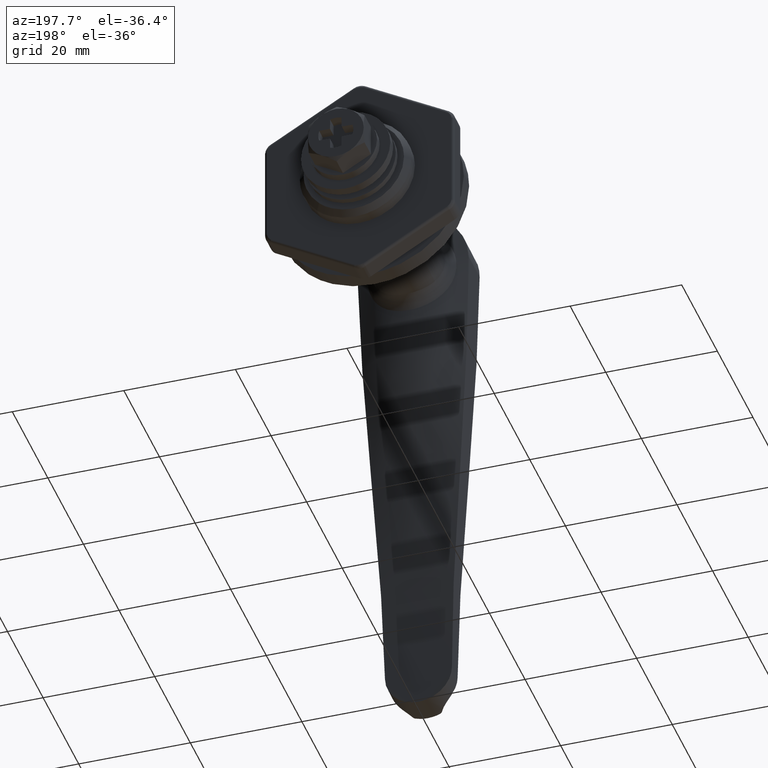
[diagram: clean part render]
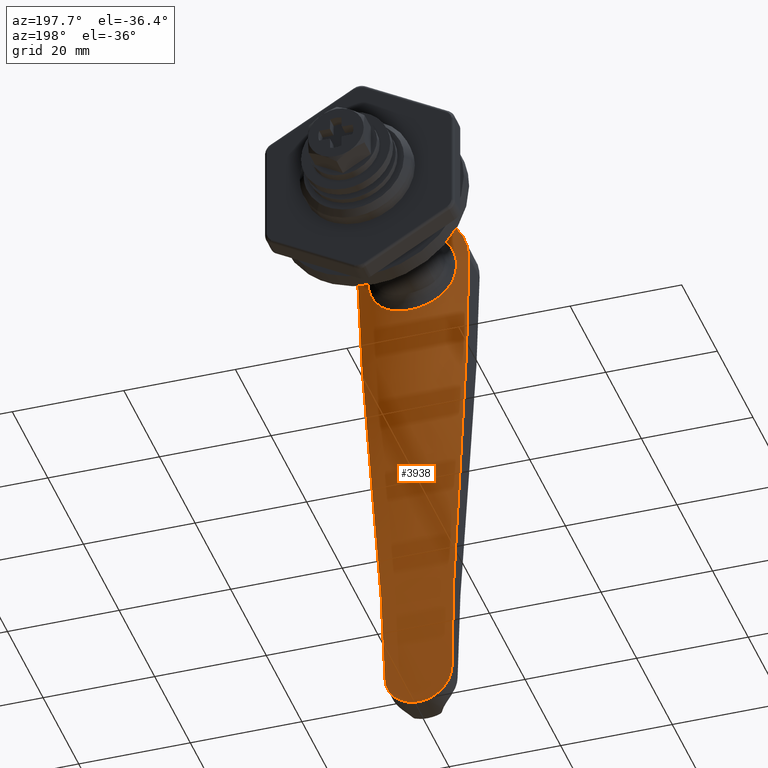
[diagram: same view with one face highlighted and labeled with its STEP entity id]
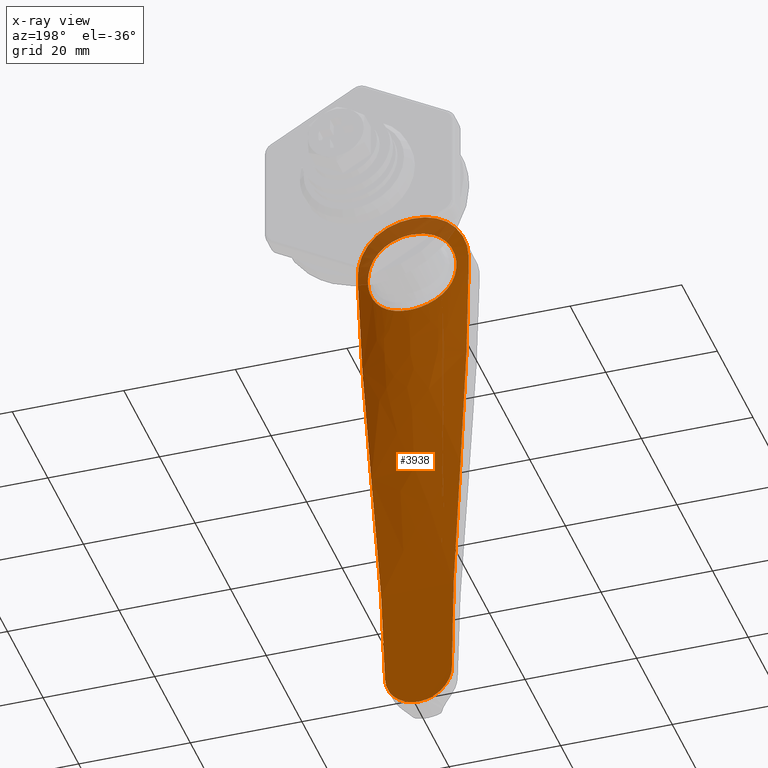
[diagram: x-ray of the same camera — body ghosted, the highlighted face saturated]
A machine part, auxiliary view. The second image highlights one B-rep face of the part: STEP entity #3938.
The next image is the same camera in x-ray: the body ghosted, the highlighted face saturated — about 5% of this face is hidden behind the body in this view.
In plain terms, the highlighted face is a freeform B-spline surface patch.
Its self-contained STEP definition (entity closure, byte-faithful):
#1547=CARTESIAN_POINT('',(-19.001357601555679,-0.107228010979163,8.244339225823069));
#1548=VERTEX_POINT('',#1547);
#1560=CARTESIAN_POINT('',(-17.903535020142229,0.000100562732605,-8.480622176158606));
#1561=VERTEX_POINT('',#1560);
#1562=CARTESIAN_POINT('',(-17.903535020142229,0.000100562732559,-8.480622176158605));
#1563=CARTESIAN_POINT('',(-17.903533771959740,-0.268470255630281,-8.480626079845102));
#1564=CARTESIAN_POINT('',(-17.908516212229561,-0.537181878358486,-8.465483119712154));
#1565=CARTESIAN_POINT('',(-17.920966587298238,-0.873250228066681,-8.427283192017981));
#1566=CARTESIAN_POINT('',(-17.923773023817631,-0.940581087243369,-8.418661101730489));
#1567=CARTESIAN_POINT('',(-17.929980183496379,-1.074680005699520,-8.399552330035121));
#1568=CARTESIAN_POINT('',(-17.940172388044751,-1.274847450030673,-8.368122327499307));
#1569=CARTESIAN_POINT('',(-17.952928025645210,-1.472131532257136,-8.328550920945688));
#1570=CARTESIAN_POINT('',(-17.981652414657820,-1.862980732175174,-8.238878486099228));
#1571=CARTESIAN_POINT('',(-18.005084546535599,-2.118597422357235,-8.165085301641256));
#1572=CARTESIAN_POINT('',(-18.059485669247451,-2.620354409313454,-7.990466910587501));
#1573=CARTESIAN_POINT('',(-18.090456822066479,-2.866493596288445,-7.889638933897142));
#1574=CARTESIAN_POINT('',(-18.133257972376111,-3.168330585035307,-7.746781865837944));
#1575=CARTESIAN_POINT('',(-18.142022539413169,-3.228405476643717,-7.717367306237422));
#1576=CARTESIAN_POINT('',(-18.159944474894150,-3.347969803437070,-7.656845609702264));
#1577=CARTESIAN_POINT('',(-18.169116371887750,-3.407549924323874,-7.625688616682503));
#1578=CARTESIAN_POINT('',(-18.197072410485880,-3.584627675196495,-7.530091988802067));
#1579=CARTESIAN_POINT('',(-18.216285716000801,-3.700420341922248,-7.463568372934971));
#1580=CARTESIAN_POINT('',(-18.275368968625859,-4.041309817315939,-7.255921962124987));
#1581=CARTESIAN_POINT('',(-18.316679402712300,-4.259935860186392,-7.106745994850190));
#1582=CARTESIAN_POINT('',(-18.401727451926170,-4.680972028618286,-6.787903085359334));
#1583=CARTESIAN_POINT('',(-18.445467445121590,-4.883378904141859,-6.618232531297219));
#1584=CARTESIAN_POINT('',(-18.511887916741511,-5.175209085574603,-6.348591607343177));
#1585=CARTESIAN_POINT('',(-18.534163434659291,-5.270518597066996,-6.256183827995788));
#1586=CARTESIAN_POINT('',(-18.578817288207961,-5.457222550359818,-6.066294612560977));
#1587=CARTESIAN_POINT('',(-18.601234044542672,-5.548763244794835,-5.968630540817461));
#1588=CARTESIAN_POINT('',(-18.712093511562731,-5.992491057117702,-5.472328147754692));
#1589=CARTESIAN_POINT('',(-18.797528960736638,-6.306342419387625,-5.047037577970192));
#1590=CARTESIAN_POINT('',(-18.914159062926419,-6.720465062138677,-4.368906543235881));
#1591=CARTESIAN_POINT('',(-18.951127856449769,-6.848982809286814,-4.136111684621265));
#1592=CARTESIAN_POINT('',(-19.002983077364970,-7.027422973765996,-3.776623534798788));
#1593=CARTESIAN_POINT('',(-19.019703076078180,-7.084624659140388,-3.654797496497821));
#1594=CARTESIAN_POINT('',(-19.051579159708339,-7.193324787107718,-3.409627307575682));
#1595=CARTESIAN_POINT('',(-19.066755146768379,-7.244893204118878,-3.286174423101961));
#1596=CARTESIAN_POINT('',(-19.138706358481841,-7.489105218638333,-2.664641396814118));
#1597=CARTESIAN_POINT('',(-19.183594052959311,-7.641272758739031,-2.153866511792936));
#1598=CARTESIAN_POINT('',(-19.222966003340499,-7.777677777778497,-1.498443922918037));
#1599=CARTESIAN_POINT('',(-19.230009952773390,-7.802242616273536,-1.366504755889713));
#1600=CARTESIAN_POINT('',(-19.242441294682362,-7.845837579649390,-1.100887915838684));
#1601=CARTESIAN_POINT('',(-19.247837113530689,-7.864897864651299,-0.966947924076836));
#1602=CARTESIAN_POINT('',(-19.261502139554342,-7.913331478714336,-0.564354621739229));
#1603=CARTESIAN_POINT('',(-19.267216949293239,-7.933878045087564,-0.296213144078205));
#1604=CARTESIAN_POINT('',(-19.272657674119230,-7.951640606911345,0.239565974054831));
#1605=CARTESIAN_POINT('',(-19.272384884226788,-7.948857177693134,0.507203628369853));
#1606=CARTESIAN_POINT('',(-19.266696411926130,-7.919353629415911,1.041963248542530));
#1607=CARTESIAN_POINT('',(-19.261280902877029,-7.892637027825327,1.309085289460026));
#1608=CARTESIAN_POINT('',(-19.250029481113440,-7.833542589494994,1.709359781462910));
#1609=CARTESIAN_POINT('',(-19.245745616820361,-7.810593880257427,1.843054204684237));
#1610=CARTESIAN_POINT('',(-19.236354587245010,-7.758550302217469,2.108035780329001));
#1611=CARTESIAN_POINT('',(-19.231247802364390,-7.729459977096062,2.239420608756129));
#1612=CARTESIAN_POINT('',(-19.214953295301370,-7.632963130392581,2.630262613184777));
#1613=CARTESIAN_POINT('',(-19.202794651284130,-7.556351876784653,2.886414946581416));
#1614=CARTESIAN_POINT('',(-19.177197421848181,-7.377946099766312,3.389744505623486));
#1615=CARTESIAN_POINT('',(-19.163759448561411,-7.276153499466902,3.636922441549347));
#1616=CARTESIAN_POINT('',(-19.143543661359971,-7.103585188253187,4.000650549614969));
#1617=CARTESIAN_POINT('',(-19.136794338970120,-7.042743556433375,4.120718083710338));
#1618=CARTESIAN_POINT('',(-19.126757700568980,-6.946322974308472,4.298997987038042));
#1619=CARTESIAN_POINT('',(-19.123421681335749,-6.913270082880053,4.358209285768870));
#1620=CARTESIAN_POINT('',(-19.116830762659280,-6.845782030613715,4.475376646059035));
#1621=CARTESIAN_POINT('',(-19.113573641085821,-6.811328895789353,4.533372302735891));
#1622=CARTESIAN_POINT('',(-19.084666031904970,-6.494913079133580,5.050080953752153));
#1623=CARTESIAN_POINT('',(-19.062071544611360,-6.168913771120526,5.472310240709373));
#1624=CARTESIAN_POINT('',(-19.035828296963931,-5.613160505933566,6.050498212820331));
#1625=CARTESIAN_POINT('',(-19.028315406410101,-5.416724498789571,6.233983655652306));
#1626=CARTESIAN_POINT('',(-19.018945289384931,-5.104751510302297,6.494897752378661));
#1627=CARTESIAN_POINT('',(-19.016162146678148,-4.998710465098482,6.578767819512839));
#1628=CARTESIAN_POINT('',(-19.011239609158309,-4.783232661999503,6.740038164761065));
#1629=CARTESIAN_POINT('',(-19.009097281060441,-4.673701674946831,6.817517227776757));
#1630=CARTESIAN_POINT('',(-19.003532339670642,-4.339875910339416,7.040737424072831));
#1631=CARTESIAN_POINT('',(-19.000973783406309,-4.110360818235138,7.177283639091494));
#1632=CARTESIAN_POINT('',(-18.997582868094149,-3.637850789571671,7.426623529642908));
#1633=CARTESIAN_POINT('',(-18.996748646377611,-3.394855877389408,7.539417213098608));
#1634=CARTESIAN_POINT('',(-18.996395090719709,-3.082716605656477,7.665608288670358));
#1635=CARTESIAN_POINT('',(-18.996358810458929,-3.019867971217528,7.690104689904250));
#1636=CARTESIAN_POINT('',(-18.996345411907200,-2.893325787359793,7.737607762377543));
#1637=CARTESIAN_POINT('',(-18.996368385209529,-2.829538814944996,7.760645995021881));
#1638=CARTESIAN_POINT('',(-18.996510856532520,-2.637745013171653,7.827225259268036));
#1639=CARTESIAN_POINT('',(-18.996703103167331,-2.509306294895104,7.868246784712333));
#1640=CARTESIAN_POINT('',(-18.997450810317869,-2.122318256994201,7.981549471806416));
#1641=CARTESIAN_POINT('',(-18.998171598270321,-1.862101900907550,8.044097095884775));
#1642=CARTESIAN_POINT('',(-18.999546095289240,-1.337395581886809,8.144244550796577));
#1643=CARTESIAN_POINT('',(-19.000199365191410,-1.072905266629286,8.181842329359192));
#1644=CARTESIAN_POINT('',(-19.001051842729751,-0.574883329135617,8.228896128382354));
#1645=CARTESIAN_POINT('',(-19.001299039513729,-0.341881931208443,8.241414826837783));
#1646=CARTESIAN_POINT('',(-19.001357601555679,-0.107228010979163,8.244339225823069));
#1647=B_SPLINE_CURVE_WITH_KNOTS('',3,(#1562,#1563,#1564,#1565,#1566,#1567,#1568,#1569,#1570,#1571,#1572,#1573,#1574,#1575,#1576,#1577,#1578,#1579,#1580,#1581,#1582,#1583,#1584,#1585,#1586,#1587,#1588,#1589,#1590,#1591,#1592,#1593,#1594,#1595,#1596,#1597,#1598,#1599,#1600,#1601,#1602,#1603,#1604,#1605,#1606,#1607,#1608,#1609,#1610,#1611,#1612,#1613,#1614,#1615,#1616,#1617,#1618,#1619,#1620,#1621,#1622,#1623,#1624,#1625,#1626,#1627,#1628,#1629,#1630,#1631,#1632,#1633,#1634,#1635,#1636,#1637,#1638,#1639,#1640,#1641,#1642,#1643,#1644,#1645,#1646),.UNSPECIFIED.,.F.,.U.,(4,2,2,1,2,2,2,2,2,2,2,2,2,2,2,2,2,2,2,2,2,2,2,2,2,2,2,2,2,2,2,2,2,2,2,2,2,2,2,2,2,2,4),(0.500000000000001,0.515625000000001,0.519531250000001,0.523437500000001,0.531250000000001,0.546875000000001,0.562500000000001,0.566406250000001,0.570312500000001,0.578125000000001,0.593750000000001,0.609375000000001,0.617187500000001,0.625000000000001,0.656250000000001,0.671875000000001,0.679687500000001,0.687500000000001,0.718750000000001,0.726562500000001,0.734375000000001,0.750000000000001,0.765625000000001,0.781250000000001,0.789062500000001,0.796875000000001,0.812500000000001,0.828125000000001,0.835937500000001,0.839843750000001,0.843750000000001,0.875000000000001,0.890625000000001,0.898437500000001,0.906250000000001,0.921875000000000,0.937500000000000,0.941406250000000,0.945312500000000,0.953125000000000,0.968750000000000,0.984375000000000,0.997936514156844),.UNSPECIFIED.);
#1648=EDGE_CURVE('',#1561,#1548,#1647,.T.);
#1650=CARTESIAN_POINT('',(-19.068282113950410,6.227806862044089,5.369896693293233));
#1651=VERTEX_POINT('',#1650);
#1652=CARTESIAN_POINT('',(-19.068282113950410,6.227806862044089,5.369896693293233));
#1653=CARTESIAN_POINT('',(-19.080980775893359,6.427036051257670,5.122360979012221));
#1654=CARTESIAN_POINT('',(-19.095223447820889,6.610773373964645,4.861292010283801));
#1655=CARTESIAN_POINT('',(-19.113829179422009,6.814080900616744,4.528788459815425));
#1656=CARTESIAN_POINT('',(-19.117105398307579,6.848668862192797,4.470462094558425));
#1657=CARTESIAN_POINT('',(-19.123694064060722,6.916011480538908,4.353344994353220));
#1658=CARTESIAN_POINT('',(-19.133646707368360,7.014448443223040,4.176695414983241));
#1659=CARTESIAN_POINT('',(-19.143736585286121,7.105300165926714,3.997175723374084));
#1660=CARTESIAN_POINT('',(-19.163894413481518,7.277206430326536,3.634419355838861));
#1661=CARTESIAN_POINT('',(-19.177307874801699,7.378769089551774,3.387634117986985));
#1662=CARTESIAN_POINT('',(-19.202884073181011,7.556942234938492,2.884537475815836));
#1663=CARTESIAN_POINT('',(-19.215046274342029,7.633551624093230,2.628225628745045));
#1664=CARTESIAN_POINT('',(-19.231355379531809,7.730090509980546,2.236692195917787));
#1665=CARTESIAN_POINT('',(-19.236468446072259,7.759202451725784,2.105001439905572));
#1666=CARTESIAN_POINT('',(-19.245871243345409,7.811283929278599,1.839249239583157));
#1667=CARTESIAN_POINT('',(-19.250122844988532,7.834046251373824,1.706246549176100));
#1668=CARTESIAN_POINT('',(-19.261325111310239,7.892863718418711,1.306947527711631));
#1669=CARTESIAN_POINT('',(-19.266720707267140,7.919482232290541,1.040326916669834));
#1670=CARTESIAN_POINT('',(-19.272385256368860,7.948869775391202,0.506283460038410));
#1671=CARTESIAN_POINT('',(-19.272654013774240,7.951635761502097,0.238860513774644));
#1672=CARTESIAN_POINT('',(-19.267205406256569,7.933841183450872,-0.296773602878840));
#1673=CARTESIAN_POINT('',(-19.261486727493430,7.913280446643648,-0.564984783778431));
#1674=CARTESIAN_POINT('',(-19.243237936170701,7.848601183714503,-1.102206004744640));
#1675=CARTESIAN_POINT('',(-19.230815932550382,7.804877067187138,-1.367813134221373));
#1676=CARTESIAN_POINT('',(-19.183562859806660,7.641169475302292,-2.154242203551778));
#1677=CARTESIAN_POINT('',(-19.138638564111449,7.488880777125524,-2.665525289512008));
#1678=CARTESIAN_POINT('',(-19.066500739144949,7.244031977533418,-3.288287684539276));
#1679=CARTESIAN_POINT('',(-19.051279596102589,7.192308827576602,-3.412022803525309));
#1680=CARTESIAN_POINT('',(-19.019300270097549,7.083251043623728,-3.657789707576298));
#1681=CARTESIAN_POINT('',(-19.002648523646641,7.026278394221994,-3.779006254088048));
#1682=CARTESIAN_POINT('',(-18.950873496878820,6.848102151507272,-4.137730616841682));
#1683=CARTESIAN_POINT('',(-18.913927822314861,6.719658628588840,-4.370324356732314));
#1684=CARTESIAN_POINT('',(-18.836128226747270,6.443388391797360,-4.822525386177055));
#1685=CARTESIAN_POINT('',(-18.795273846649941,6.295562845859812,-5.042133336724987));
#1686=CARTESIAN_POINT('',(-18.731839735007849,6.058786513233447,-5.361623884375960));
#1687=CARTESIAN_POINT('',(-18.710337007276308,5.977349932988626,-5.466464251913200));
#1688=CARTESIAN_POINT('',(-18.666755426539900,5.809308275833063,-5.672763689918319));
#1689=CARTESIAN_POINT('',(-18.644624487709649,5.722493191467095,-5.774452998243625));
#1690=CARTESIAN_POINT('',(-18.533585113103740,5.277776193330917,-6.271163477595421));
#1691=CARTESIAN_POINT('',(-18.443965013168469,4.890197433725672,-6.629603844554417));
#1692=CARTESIAN_POINT('',(-18.316404420845871,4.258514127750243,-7.107750671416707));
#1693=CARTESIAN_POINT('',(-18.275030077619508,4.039508439017823,-7.257142723560106));
#1694=CARTESIAN_POINT('',(-18.215771536642269,3.697377842054078,-7.465358848309863));
#1695=CARTESIAN_POINT('',(-18.196433710095562,3.580703027406691,-7.532291783327941));
#1696=CARTESIAN_POINT('',(-18.159287193692471,3.345168775697409,-7.659281920369983));
#1697=CARTESIAN_POINT('',(-18.141447705626081,3.226163977845459,-7.719453504756598));
#1698=CARTESIAN_POINT('',(-18.090328593657869,2.865434196710718,-7.890051764213489));
#1699=CARTESIAN_POINT('',(-18.059447817382399,2.620002875056966,-7.990587736283571));
#1700=CARTESIAN_POINT('',(-18.005130237153072,2.119023917998979,-8.164938385491189));
#1701=CARTESIAN_POINT('',(-17.981691135170291,1.863477882306958,-8.238756944231408));
#1702=CARTESIAN_POINT('',(-17.952929716191900,1.472171175251353,-8.328545558685992));
#1703=CARTESIAN_POINT('',(-17.944409328580679,1.340401782092986,-8.354978086749016));
#1704=CARTESIAN_POINT('',(-17.933338601507369,1.140670588310559,-8.389196068590984));
#1705=CARTESIAN_POINT('',(-17.929928433570289,1.073632470801549,-8.399711654622683));
#1706=CARTESIAN_POINT('',(-17.923727317141751,0.939524282456268,-8.418801477738873));
#1707=CARTESIAN_POINT('',(-17.920935332072720,0.872461222252841,-8.427379027784513));
#1708=CARTESIAN_POINT('',(-17.908521180228210,0.537101398369599,-8.465467503597658));
#1709=CARTESIAN_POINT('',(-17.903536256704889,0.268671382634969,-8.480618271829126));
#1710=CARTESIAN_POINT('',(-17.903535020142229,0.000100562732605,-8.480622176158606));
#1711=B_SPLINE_CURVE_WITH_KNOTS('',3,(#1652,#1653,#1654,#1655,#1656,#1657,#1658,#1659,#1660,#1661,#1662,#1663,#1664,#1665,#1666,#1667,#1668,#1669,#1670,#1671,#1672,#1673,#1674,#1675,#1676,#1677,#1678,#1679,#1680,#1681,#1682,#1683,#1684,#1685,#1686,#1687,#1688,#1689,#1690,#1691,#1692,#1693,#1694,#1695,#1696,#1697,#1698,#1699,#1700,#1701,#1702,#1703,#1704,#1705,#1706,#1707,#1708,#1709,#1710),.UNSPECIFIED.,.F.,.U.,(4,2,2,1,2,2,2,2,2,2,2,2,2,2,2,2,2,2,2,2,2,2,2,2,2,2,2,2,2,4),(0.137643448872302,0.156249999999999,0.160156249999999,0.164062499999999,0.171874999999999,0.187499999999999,0.203124999999999,0.210937499999999,0.218749999999999,0.234374999999999,0.249999999999999,0.265624999999999,0.281249999999999,0.312499999999999,0.320312499999999,0.328125000000000,0.343750000000000,0.359375000000000,0.367187500000000,0.375000000000000,0.406250000000000,0.421875000000000,0.429687500000000,0.437500000000000,0.453125000000001,0.468750000000001,0.476562500000001,0.480468750000001,0.484375000000001,0.500000000000001),.UNSPECIFIED.);
#1712=EDGE_CURVE('',#1651,#1561,#1711,.T.);
#1838=CARTESIAN_POINT('',(-19.001370817716150,6.776264E-016,8.245008103080039));
#1839=VERTEX_POINT('',#1838);
#1840=CARTESIAN_POINT('',(-19.001370817716150,6.776264E-016,8.245008103080039));
#1841=CARTESIAN_POINT('',(-19.001370759928658,0.270939188124044,8.245008106277727));
#1842=CARTESIAN_POINT('',(-19.001111933367930,0.539848213783833,8.232221844354337));
#1843=CARTESIAN_POINT('',(-19.000197510325439,1.073713097835259,8.181750449586360));
#1844=CARTESIAN_POINT('',(-18.999542614838528,1.338668633912024,8.144063278194512));
#1845=CARTESIAN_POINT('',(-18.998164510752790,1.864590619439029,8.043559997290922));
#1846=CARTESIAN_POINT('',(-18.997441668235041,2.125557487093562,7.980746518083983));
#1847=CARTESIAN_POINT('',(-18.996694919734178,2.513882240423838,7.866832643144313));
#1848=CARTESIAN_POINT('',(-18.996503654256319,2.643155741074718,7.825441319437822));
#1849=CARTESIAN_POINT('',(-18.996319234225879,2.898420115654758,7.736636437840273));
#1850=CARTESIAN_POINT('',(-18.996325647000610,3.024451696697625,7.689235285728863));
#1851=CARTESIAN_POINT('',(-18.996756778376412,3.397773227481405,7.538091204147809));
#1852=CARTESIAN_POINT('',(-18.997593730102309,3.640301924518719,7.425430073146223));
#1853=CARTESIAN_POINT('',(-19.000994147624009,4.112509495943869,7.176049062836230));
#1854=CARTESIAN_POINT('',(-19.003559471796230,4.342188871582291,7.039330153329687));
#1855=CARTESIAN_POINT('',(-19.009150892132268,4.676669017364199,6.815462319229020));
#1856=CARTESIAN_POINT('',(-19.011304847169349,4.786486164921375,6.737702346572339));
#1857=CARTESIAN_POINT('',(-19.016259349572469,5.002661275606022,6.575708719432722));
#1858=CARTESIAN_POINT('',(-19.019068376861540,5.109220614905208,6.491278825319884));
#1859=CARTESIAN_POINT('',(-19.028420485900678,5.419591671138319,6.231342002564094));
#1860=CARTESIAN_POINT('',(-19.035919743977679,5.615374659128980,6.048334450520024));
#1861=CARTESIAN_POINT('',(-19.051737272099960,5.949894765769680,5.700056763785525));
#1862=CARTESIAN_POINT('',(-19.059653225916829,6.092427436391702,5.538101164328117));
#1863=CARTESIAN_POINT('',(-19.068282113950410,6.227806862044089,5.369896693293233));
#1864=B_SPLINE_CURVE_WITH_KNOTS('',3,(#1840,#1841,#1842,#1843,#1844,#1845,#1846,#1847,#1848,#1849,#1850,#1851,#1852,#1853,#1854,#1855,#1856,#1857,#1858,#1859,#1860,#1861,#1862,#1863),.UNSPECIFIED.,.F.,.U.,(4,2,2,2,2,2,2,2,2,2,2,4),(0.0,0.015625000000000,0.031250000000000,0.046875000000000,0.054687500000000,0.062500000000000,0.078125000000000,0.093749999999999,0.101562499999999,0.109374999999999,0.124999999999999,0.137643448872302),.UNSPECIFIED.);
#1865=EDGE_CURVE('',#1839,#1651,#1864,.T.);
#1867=CARTESIAN_POINT('',(-19.001357601555679,-0.107228010979163,8.244339225823069));
#1868=CARTESIAN_POINT('',(-19.001370817716150,6.776264E-016,8.245008103080039));
#1869=QUASI_UNIFORM_CURVE('',1,(#1867,#1868),.UNSPECIFIED.,.F.,.U.);
#1870=EDGE_CURVE('',#1548,#1839,#1869,.T.);
#3048=CARTESIAN_POINT('',(-19.500000000000000,0.002845863706762,12.000000000000460));
#3049=VERTEX_POINT('',#3048);
#3055=CARTESIAN_POINT('',(-19.852089478674500,9.942125116040240,1.940300609303185));
#3056=VERTEX_POINT('',#3055);
#3057=CARTESIAN_POINT('',(-19.852089478674500,9.942125116040240,1.940300609303185));
#3058=CARTESIAN_POINT('',(-19.840504342791021,9.946111417464527,2.271304491688516));
#3059=CARTESIAN_POINT('',(-19.823805584489911,9.933572393587131,2.599342688325600));
#3060=CARTESIAN_POINT('',(-19.783342092462512,9.876766393733028,3.249921557686267));
#3061=CARTESIAN_POINT('',(-19.759579352706378,9.832495406652663,3.572461741534132));
#3062=CARTESIAN_POINT('',(-19.708072306676328,9.712486938934330,4.212305937127796));
#3063=CARTESIAN_POINT('',(-19.680329617497271,9.636750409882588,4.529610214075296));
#3064=CARTESIAN_POINT('',(-19.645005780737819,9.521952664404306,4.923027057208777));
#3065=CARTESIAN_POINT('',(-19.637908345717811,9.497984222144915,5.001549323002757));
#3066=CARTESIAN_POINT('',(-19.623692502783360,9.448007560266595,5.158271355349747));
#3067=CARTESIAN_POINT('',(-19.616564352728879,9.421961009279285,5.236578064867534));
#3068=CARTESIAN_POINT('',(-19.595310062877921,9.341095519939309,5.469956989299011));
#3069=CARTESIAN_POINT('',(-19.581305977201659,9.283532395503070,5.623596811808681));
#3070=CARTESIAN_POINT('',(-19.540256285546459,9.100083655417750,6.078821159923560));
#3071=CARTESIAN_POINT('',(-19.514192621362440,8.963465173976438,6.374726296898198));
#3072=CARTESIAN_POINT('',(-19.466666605513328,8.661969855623880,6.951741319134568));
#3073=CARTESIAN_POINT('',(-19.445202684726809,8.497092281303120,7.232850686004259));
#3074=CARTESIAN_POINT('',(-19.417500015794761,8.228232005674171,7.643312137178990));
#3075=CARTESIAN_POINT('',(-19.409010108355229,8.135014768153821,7.778261681913909));
#3076=CARTESIAN_POINT('',(-19.397481947569371,7.989688442701850,7.977830477183364));
#3077=CARTESIAN_POINT('',(-19.393840067061319,7.940329149658172,8.043877231119620));
#3078=CARTESIAN_POINT('',(-19.386969700653840,7.839753236435041,8.175006987988409));
#3079=CARTESIAN_POINT('',(-19.383745026985959,7.788579503618374,8.240028598794012));
#3080=CARTESIAN_POINT('',(-19.368754442423270,7.529536431854784,8.560873617313092));
#3081=CARTESIAN_POINT('',(-19.360331285552000,7.311086049168969,8.805365298575193));
#3082=CARTESIAN_POINT('',(-19.350155148207989,6.852401166095016,9.270680951141328));
#3083=CARTESIAN_POINT('',(-19.348398873684339,6.612165071861645,9.491503151822354));
#3084=CARTESIAN_POINT('',(-19.350611756917878,6.109906759907513,9.909467924702076));
#3085=CARTESIAN_POINT('',(-19.354578827749279,5.847886102096211,10.106612175110550));
#3086=CARTESIAN_POINT('',(-19.363824276686760,5.438034206070107,10.384034082360600));
#3087=CARTESIAN_POINT('',(-19.367459570092940,5.298432118641217,10.473531410949720));
#3088=CARTESIAN_POINT('',(-19.375523381088829,5.016690126381170,10.644410888123620));
#3089=CARTESIAN_POINT('',(-19.379958638460622,4.874186988197903,10.726052939967190));
#3090=CARTESIAN_POINT('',(-19.394109149772831,4.441854836964431,10.959783759912650));
#3091=CARTESIAN_POINT('',(-19.404665879399928,4.147214867188453,11.100704628827749));
#3092=CARTESIAN_POINT('',(-19.426137899060961,3.545193569808584,11.353110746773790));
#3093=CARTESIAN_POINT('',(-19.437051442214891,3.237812387908654,11.464596464280520));
#3094=CARTESIAN_POINT('',(-19.452366081840420,2.766970631128200,11.609354692192561));
#3095=CARTESIAN_POINT('',(-19.457296147996111,2.608392077395327,11.653855434129211));
#3096=CARTESIAN_POINT('',(-19.466602509657982,2.287898780293368,11.735198516363189));
#3097=CARTESIAN_POINT('',(-19.470957160453079,2.126673060303721,11.771853755199739));
#3098=CARTESIAN_POINT('',(-19.482827579512129,1.642125316630144,11.869431388656819));
#3099=CARTESIAN_POINT('',(-19.489159979898481,1.317082466054211,11.918215172170701));
#3100=CARTESIAN_POINT('',(-19.497746730643161,0.662991542638572,11.983498975177760));
#3101=CARTESIAN_POINT('',(-19.500000000000011,0.333943576080169,12.000000000000471));
#3102=CARTESIAN_POINT('',(-19.500000000000000,0.002845863706762,12.000000000000460));
#3103=B_SPLINE_CURVE_WITH_KNOTS('',3,(#3057,#3058,#3059,#3060,#3061,#3062,#3063,#3064,#3065,#3066,#3067,#3068,#3069,#3070,#3071,#3072,#3073,#3074,#3075,#3076,#3077,#3078,#3079,#3080,#3081,#3082,#3083,#3084,#3085,#3086,#3087,#3088,#3089,#3090,#3091,#3092,#3093,#3094,#3095,#3096,#3097,#3098,#3099,#3100,#3101,#3102),.UNSPECIFIED.,.F.,.U.,(4,2,2,2,2,2,2,2,2,2,2,2,2,2,2,2,2,2,2,2,2,2,4),(0.0,0.062500000000000,0.125000000000000,0.187499999999999,0.203124999999999,0.218749999999999,0.249999999999999,0.312500000000000,0.375000000000000,0.406250000000000,0.421875000000000,0.437500000000000,0.500000000000000,0.562500000000000,0.625000000000000,0.656250000000000,0.687500000000000,0.750000000000000,0.812500000000000,0.843750000000000,0.875000000000000,0.937500000000000,1.0),.UNSPECIFIED.);
#3104=EDGE_CURVE('',#3056,#3049,#3103,.T.);
#3169=CARTESIAN_POINT('',(-19.852089478674500,-9.942125116040250,1.940300609303185));
#3170=VERTEX_POINT('',#3169);
#3176=CARTESIAN_POINT('',(-19.500000000000000,-0.002845863706769,12.000000000000460));
#3177=VERTEX_POINT('',#3176);
#3178=CARTESIAN_POINT('',(-19.500000000000000,-0.002845863706769,12.000000000000460));
#3179=CARTESIAN_POINT('',(-19.500000000000000,-0.333960810856462,12.000000000000460));
#3180=CARTESIAN_POINT('',(-19.497747238442649,-0.662226170924390,11.983498974771910));
#3181=CARTESIAN_POINT('',(-19.489219536887390,-1.313267341629717,11.918671809226820));
#3182=CARTESIAN_POINT('',(-19.482946290593080,-1.636042637917376,11.870342446257290));
#3183=CARTESIAN_POINT('',(-19.467324594315379,-2.276155984317146,11.742056171684800));
#3184=CARTESIAN_POINT('',(-19.457976910435779,-2.593494295132160,11.662100704610779));
#3185=CARTESIAN_POINT('',(-19.445225859481390,-2.986707201495857,11.541926694725680));
#3186=CARTESIAN_POINT('',(-19.442623336178350,-3.065176394286597,11.516878001067630));
#3187=CARTESIAN_POINT('',(-19.437339055056711,-3.221764841152401,11.464731278576680));
#3188=CARTESIAN_POINT('',(-19.434653545409208,-3.299990911702856,11.437593309297860));
#3189=CARTESIAN_POINT('',(-19.426556590406950,-3.533053880629529,11.353466432159820));
#3190=CARTESIAN_POINT('',(-19.421100685668350,-3.686411275025699,11.293735436392140));
#3191=CARTESIAN_POINT('',(-19.404904195931032,-4.140558161331813,11.103817442709330));
#3192=CARTESIAN_POINT('',(-19.394335152802888,-4.435436898624686,10.962931721773961));
#3193=CARTESIAN_POINT('',(-19.375506468670348,-5.009737043928440,10.653084267876221));
#3194=CARTESIAN_POINT('',(-19.367248819104660,-5.289158280919880,10.484122121197730));
#3195=CARTESIAN_POINT('',(-19.357961314152089,-5.696582664703230,10.209343185944061));
#3196=CARTESIAN_POINT('',(-19.355381534292359,-5.830435942136852,10.114187757946150));
#3197=CARTESIAN_POINT('',(-19.351473118744110,-6.094168271088940,9.916623822723732));
#3198=CARTESIAN_POINT('',(-19.350144801379919,-6.224400964028424,9.813907928571634));
#3199=CARTESIAN_POINT('',(-19.348357975198962,-6.605364352370973,9.497694113853006));
#3200=CARTESIAN_POINT('',(-19.350089141143901,-6.846914510126576,9.275887339029678));
#3201=CARTESIAN_POINT('',(-19.360161963301149,-7.305907627320121,8.810969900934502));
#3202=CARTESIAN_POINT('',(-19.368505519536221,-7.523348831644979,8.567857736462086));
#3203=CARTESIAN_POINT('',(-19.392064633766921,-7.934159369712647,8.060370261762612));
#3204=CARTESIAN_POINT('',(-19.407283427839779,-8.127530422619451,7.795996600973576));
#3205=CARTESIAN_POINT('',(-19.435025564498300,-8.399036586336266,7.383036764506469));
#3206=CARTESIAN_POINT('',(-19.445104649043252,-8.486525195565127,7.242454763243224));
#3207=CARTESIAN_POINT('',(-19.466526524959608,-8.653340871216537,6.958937487242660));
#3208=CARTESIAN_POINT('',(-19.477891998327468,-8.732923076057828,6.815636190746891));
#3209=CARTESIAN_POINT('',(-19.513633041358990,-8.960412303903683,6.381168628838268));
#3210=CARTESIAN_POINT('',(-19.539669383994589,-9.097089987471042,6.085451803254096));
#3211=CARTESIAN_POINT('',(-19.594073529977390,-9.340950607092122,5.481891027561528));
#3212=CARTESIAN_POINT('',(-19.622442221658769,-9.448134520772701,5.174047562496625));
#3213=CARTESIAN_POINT('',(-19.664783911429222,-9.586455975963299,4.702879059936985));
#3214=CARTESIAN_POINT('',(-19.678858379229169,-9.628813538024581,4.544252309251664));
#3215=CARTESIAN_POINT('',(-19.706549176712990,-9.705881106084846,4.223762992613192));
#3216=CARTESIAN_POINT('',(-19.720101625542309,-9.740408659751235,4.062612445707300));
#3217=CARTESIAN_POINT('',(-19.759147940521821,-9.831693624561993,3.578319779351705));
#3218=CARTESIAN_POINT('',(-19.783100257121429,-9.876378482179588,3.253546477038984));
#3219=CARTESIAN_POINT('',(-19.823781095260308,-9.933586100713484,2.599998061102212));
#3220=CARTESIAN_POINT('',(-19.840507196274729,-9.946110435616216,2.271222963582659));
#3221=CARTESIAN_POINT('',(-19.852089478674500,-9.942125116040250,1.940300609303185));
#3222=B_SPLINE_CURVE_WITH_KNOTS('',3,(#3178,#3179,#3180,#3181,#3182,#3183,#3184,#3185,#3186,#3187,#3188,#3189,#3190,#3191,#3192,#3193,#3194,#3195,#3196,#3197,#3198,#3199,#3200,#3201,#3202,#3203,#3204,#3205,#3206,#3207,#3208,#3209,#3210,#3211,#3212,#3213,#3214,#3215,#3216,#3217,#3218,#3219,#3220,#3221),.UNSPECIFIED.,.F.,.U.,(4,2,2,2,2,2,2,2,2,2,2,2,2,2,2,2,2,2,2,2,2,4),(0.0,0.062500000000000,0.125000000000000,0.187499999999999,0.203124999999999,0.218749999999999,0.249999999999999,0.312499999999999,0.374999999999999,0.406249999999999,0.437499999999999,0.499999999999999,0.562499999999999,0.624999999999999,0.656249999999999,0.687499999999999,0.749999999999999,0.812499999999999,0.843749999999999,0.874999999999999,0.937500000000000,1.0),.UNSPECIFIED.);
#3223=EDGE_CURVE('',#3177,#3170,#3222,.T.);
#3271=CARTESIAN_POINT('',(-22.791338238143950,-6.000646811528800,-82.038235375539003));
#3272=VERTEX_POINT('',#3271);
#3278=CARTESIAN_POINT('',(-21.326636525254148,-8.0,-40.189615007261047));
#3279=VERTEX_POINT('',#3278);
#3280=CARTESIAN_POINT('',(-21.326636525254148,-8.0,-40.189615007261047));
#3281=CARTESIAN_POINT('',(-21.814870247890038,-7.080496844258385,-54.139149939713498));
#3282=CARTESIAN_POINT('',(-22.303103816034870,-6.089543028374953,-68.088680458128650));
#3283=CARTESIAN_POINT('',(-22.791338238143979,-6.000646811528791,-82.038235375539003));
#3284=B_SPLINE_CURVE_WITH_KNOTS('',3,(#3280,#3281,#3282,#3283),.UNSPECIFIED.,.F.,.U.,(4,4),(0.522937444509096,0.941423706421421),.UNSPECIFIED.);
#3285=EDGE_CURVE('',#3279,#3272,#3284,.T.);
#3287=CARTESIAN_POINT('',(-19.920000000000002,-9.915000000000001,-2.074672E-013));
#3288=VERTEX_POINT('',#3287);
#3289=CARTESIAN_POINT('',(-19.920000000000002,-9.915000000000001,-2.074672E-013));
#3290=CARTESIAN_POINT('',(-20.388879049120931,-9.700204649526532,-13.396544260596830));
#3291=CARTESIAN_POINT('',(-20.857757858429981,-8.883051280188221,-26.793081669430549));
#3292=CARTESIAN_POINT('',(-21.326636525254148,-8.0,-40.189615007261047));
#3293=B_SPLINE_CURVE_WITH_KNOTS('',3,(#3289,#3290,#3291,#3292),.UNSPECIFIED.,.F.,.U.,(4,4),(0.119999951288358,0.521896156880881),.UNSPECIFIED.);
#3294=EDGE_CURVE('',#3288,#3279,#3293,.T.);
#3296=CARTESIAN_POINT('',(-19.852089478674500,-9.942125116040250,1.940300609303185));
#3297=CARTESIAN_POINT('',(-19.874726319615089,-9.934336060116324,1.293533725286308));
#3298=CARTESIAN_POINT('',(-19.897363160087089,-9.925370026069292,0.646766854657673));
#3299=CARTESIAN_POINT('',(-19.920000000000002,-9.915000000000001,-2.074672E-013));
#3300=B_SPLINE_CURVE_WITH_KNOTS('',3,(#3296,#3297,#3298,#3299),.UNSPECIFIED.,.F.,.U.,(4,4),(0.0,0.019402999738878),.UNSPECIFIED.);
#3301=EDGE_CURVE('',#3170,#3288,#3300,.T.);
#3332=CARTESIAN_POINT('',(-21.326636525254148,8.0,-40.189615007261047));
#3333=VERTEX_POINT('',#3332);
#3334=CARTESIAN_POINT('',(-22.791338238143950,6.000646811528791,-82.038235375539003));
#3335=VERTEX_POINT('',#3334);
#3336=CARTESIAN_POINT('',(-21.326636525254148,8.0,-40.189615007261047));
#3337=CARTESIAN_POINT('',(-21.814870247890038,7.080496844258388,-54.139149939713477));
#3338=CARTESIAN_POINT('',(-22.303103816034870,6.089543028374934,-68.088680458128636));
#3339=CARTESIAN_POINT('',(-22.791338238143979,6.000646811528778,-82.038235375539003));
#3340=B_SPLINE_CURVE_WITH_KNOTS('',3,(#3336,#3337,#3338,#3339),.UNSPECIFIED.,.F.,.U.,(4,4),(0.521896156880881,0.940382418793206),.UNSPECIFIED.);
#3341=EDGE_CURVE('',#3333,#3335,#3340,.T.);
#3360=CARTESIAN_POINT('',(-19.920000000000002,9.915000000000001,-2.076464E-013));
#3361=VERTEX_POINT('',#3360);
#3362=CARTESIAN_POINT('',(-19.852089478674500,9.942125116040240,1.940300609303185));
#3363=CARTESIAN_POINT('',(-19.874726319615110,9.934336060116317,1.293533725286309));
#3364=CARTESIAN_POINT('',(-19.897363160087110,9.925370026069285,0.646766854657675));
#3365=CARTESIAN_POINT('',(-19.920000000000002,9.915000000000001,-2.076464E-013));
#3366=B_SPLINE_CURVE_WITH_KNOTS('',3,(#3362,#3363,#3364,#3365),.UNSPECIFIED.,.F.,.U.,(4,4),(0.100596951549481,0.119999951288358),.UNSPECIFIED.);
#3367=EDGE_CURVE('',#3056,#3361,#3366,.T.);
#3369=CARTESIAN_POINT('',(-19.920000000000002,9.915000000000001,-2.076464E-013));
#3370=CARTESIAN_POINT('',(-20.388879049120980,9.700204649526516,-13.396544260596830));
#3371=CARTESIAN_POINT('',(-20.857757858429999,8.883051280188221,-26.793081669430538));
#3372=CARTESIAN_POINT('',(-21.326636525254148,8.0,-40.189615007261047));
#3373=B_SPLINE_CURVE_WITH_KNOTS('',3,(#3369,#3370,#3371,#3372),.UNSPECIFIED.,.F.,.U.,(4,4),(0.119999951288358,0.521896156880881),.UNSPECIFIED.);
#3374=EDGE_CURVE('',#3361,#3333,#3373,.T.);
#3386=CARTESIAN_POINT('',(-19.500000000000000,-0.002845863706769,12.000000000000460));
#3387=CARTESIAN_POINT('',(-19.500000000000000,0.002845863706762,12.000000000000460));
#3388=QUASI_UNIFORM_CURVE('',1,(#3386,#3387),.UNSPECIFIED.,.F.,.U.);
#3389=EDGE_CURVE('',#3177,#3049,#3388,.T.);
#3662=CARTESIAN_POINT('',(-23.0,-2.602031E-015,-88.000000000000995));
#3663=VERTEX_POINT('',#3662);
#3664=CARTESIAN_POINT('',(-23.0,-2.602031E-015,-88.000000000000995));
#3665=CARTESIAN_POINT('',(-23.0,0.394690791406099,-88.000000000000966));
#3666=CARTESIAN_POINT('',(-22.997791926957191,0.782801933186665,-87.961439515923672));
#3667=CARTESIAN_POINT('',(-22.991573887861101,1.355507863448923,-87.848138664867577));
#3668=CARTESIAN_POINT('',(-22.989018430998559,1.544821450752298,-87.801060128152628));
#3669=CARTESIAN_POINT('',(-22.984524167113669,1.826356822153957,-87.716163332648478));
#3670=CARTESIAN_POINT('',(-22.982913492453601,1.919929255665561,-87.685432231533412));
#3671=CARTESIAN_POINT('',(-22.979494046642309,2.105659620815461,-87.619304871963053));
#3672=CARTESIAN_POINT('',(-22.977694637818999,2.197331470908297,-87.584089540946877));
#3673=CARTESIAN_POINT('',(-22.968300829713201,2.649847334384723,-87.397474954063739));
#3674=CARTESIAN_POINT('',(-22.959528787108191,2.993326448483374,-87.214759869181933));
#3675=CARTESIAN_POINT('',(-22.947700413688811,3.399759428740875,-86.945007748356076));
#3676=CARTESIAN_POINT('',(-22.945290734871421,3.479889968112727,-86.888970912712296));
#3677=CARTESIAN_POINT('',(-22.940397286311359,3.637803367936789,-86.772659529097723));
#3678=CARTESIAN_POINT('',(-22.937907571261611,3.715766219343272,-86.712236208238636));
#3679=CARTESIAN_POINT('',(-22.930388710347891,3.944735489982485,-86.525549432526446));
#3680=CARTESIAN_POINT('',(-22.925338411464729,4.090069393271356,-86.394574639467706));
#3681=CARTESIAN_POINT('',(-22.910188356475739,4.504835540553921,-85.982720595183025));
#3682=CARTESIAN_POINT('',(-22.900119358194669,4.753231121741136,-85.683087942292715));
#3683=CARTESIAN_POINT('',(-22.887536616076648,5.027816730626747,-85.276537408043197));
#3684=CARTESIAN_POINT('',(-22.885010914827610,5.081060679688584,-85.193377310092302));
#3685=CARTESIAN_POINT('',(-22.879983198702661,5.183057559379662,-85.025067598209674));
#3686=CARTESIAN_POINT('',(-22.877482709556471,5.231792603883513,-84.939980264561356));
#3687=CARTESIAN_POINT('',(-22.869998981031500,5.371336097467385,-84.681974404060071));
#3688=CARTESIAN_POINT('',(-22.860070941837130,5.539661085258931,-84.330662465344773));
#3689=CARTESIAN_POINT('',(-22.849932361344742,5.673096230931636,-83.964988402058736));
#3690=CARTESIAN_POINT('',(-22.842097128439409,5.759930568351513,-83.685286190222854));
#3691=CARTESIAN_POINT('',(-22.839446463481789,5.786664485887060,-83.591142764011991));
#3692=CARTESIAN_POINT('',(-22.834037354162010,5.835635631395677,-83.401007180161329));
#3693=CARTESIAN_POINT('',(-22.831272499627978,5.857912401328123,-83.304798284463374));
#3694=CARTESIAN_POINT('',(-22.817204091773188,5.957075022992328,-82.822692589124102));
#3695=CARTESIAN_POINT('',(-22.805142506143650,5.998107932352530,-82.432643032673269));
#3696=CARTESIAN_POINT('',(-22.791338238143950,6.000646811528791,-82.038235375539003));
#3697=B_SPLINE_CURVE_WITH_KNOTS('',3,(#3664,#3665,#3666,#3667,#3668,#3669,#3670,#3671,#3672,#3673,#3674,#3675,#3676,#3677,#3678,#3679,#3680,#3681,#3682,#3683,#3684,#3685,#3686,#3687,#3688,#3689,#3690,#3691,#3692,#3693,#3694,#3695,#3696),.UNSPECIFIED.,.F.,.U.,(4,2,2,2,2,2,2,2,2,2,2,2,1,2,2,2,4),(0.0,0.124999999999998,0.187499999999997,0.218749999999996,0.249999999999995,0.374999999999991,0.406249999999991,0.437499999999991,0.499999999999992,0.624999999999992,0.656249999999991,0.687499999999991,0.749999999999991,0.812499999999991,0.843749999999994,0.874999999999996,1.0),.UNSPECIFIED.);
#3698=EDGE_CURVE('',#3663,#3335,#3697,.T.);
#3760=CARTESIAN_POINT('',(-22.791338238143950,-6.000646811528800,-82.038235375539003));
#3761=CARTESIAN_POINT('',(-22.805142658664249,-5.998107904300968,-82.432647390404867));
#3762=CARTESIAN_POINT('',(-22.817126398237690,-5.957094050100479,-82.820308562207103));
#3763=CARTESIAN_POINT('',(-22.833822361962248,-5.840196611242581,-83.392043222124769));
#3764=CARTESIAN_POINT('',(-22.839173224883581,-5.791933745038060,-83.580983335048614));
#3765=CARTESIAN_POINT('',(-22.847044861320580,-5.705281581539174,-83.861876035997781));
#3766=CARTESIAN_POINT('',(-22.849646253183771,-5.673972208221064,-83.955208990548357));
#3767=CARTESIAN_POINT('',(-22.854808722947809,-5.606679501218465,-84.140486392695863));
#3768=CARTESIAN_POINT('',(-22.857355665294520,-5.570889017867579,-84.231919604460003));
#3769=CARTESIAN_POINT('',(-22.869983208845081,-5.381435874971748,-84.683180063018227));
#3770=CARTESIAN_POINT('',(-22.879779251695009,-5.196566919359515,-85.025455907925192));
#3771=CARTESIAN_POINT('',(-22.892286586658219,-4.924285686659021,-85.430112430432288));
#3772=CARTESIAN_POINT('',(-22.894798896217821,-4.867751313262805,-85.509874048436416));
#3773=CARTESIAN_POINT('',(-22.899852359889000,-4.750462312589828,-85.667021686348477));
#3774=CARTESIAN_POINT('',(-22.902399198513290,-4.689567004242268,-85.744576083161732));
#3775=CARTESIAN_POINT('',(-22.910047880228529,-4.501407827151257,-85.972392954103128));
#3776=CARTESIAN_POINT('',(-22.915127859988569,-4.369500869378275,-86.116908823003385));
#3777=CARTESIAN_POINT('',(-22.930279565016349,-3.955000786254292,-86.529081077378848));
#3778=CARTESIAN_POINT('',(-22.940284283930879,-3.653804552863162,-86.775561769242174));
#3779=CARTESIAN_POINT('',(-22.952193289497540,-3.245562381667120,-87.047544190964231));
#3780=CARTESIAN_POINT('',(-22.954549706839870,-3.162081203498291,-87.100253158616681));
#3781=CARTESIAN_POINT('',(-22.959147386174340,-2.993082976598676,-87.201211575793550));
#3782=CARTESIAN_POINT('',(-22.961386391995809,-2.907666982319980,-87.249419482508429));
#3783=CARTESIAN_POINT('',(-22.967901139726582,-2.648720459605369,-87.387359665051733));
#3784=CARTESIAN_POINT('',(-22.976048798687891,-2.296275078300161,-87.553488744906986));
#3785=CARTESIAN_POINT('',(-22.982857053467090,-1.929695473399301,-87.684625158184019));
#3786=CARTESIAN_POINT('',(-22.987357108758552,-1.649395379006358,-87.769699004469985));
#3787=CARTESIAN_POINT('',(-22.988756057871090,-1.555066213704204,-87.795839987151808));
#3788=CARTESIAN_POINT('',(-22.991334043686841,-1.364585685120913,-87.843613008665713));
#3789=CARTESIAN_POINT('',(-22.992515261308970,-1.268213064096625,-87.865284668813985));
#3790=CARTESIAN_POINT('',(-22.997790158553570,-0.785223783877791,-87.961434295243308));
#3791=CARTESIAN_POINT('',(-23.0,-0.394693372523805,-88.000000000000966));
#3792=CARTESIAN_POINT('',(-23.0,-2.602031E-015,-88.000000000000995));
#3793=B_SPLINE_CURVE_WITH_KNOTS('',3,(#3760,#3761,#3762,#3763,#3764,#3765,#3766,#3767,#3768,#3769,#3770,#3771,#3772,#3773,#3774,#3775,#3776,#3777,#3778,#3779,#3780,#3781,#3782,#3783,#3784,#3785,#3786,#3787,#3788,#3789,#3790,#3791,#3792),.UNSPECIFIED.,.F.,.U.,(4,2,2,2,2,2,2,2,2,2,2,2,1,2,2,2,4),(0.0,0.125000000000014,0.187500000000021,0.218750000000022,0.250000000000023,0.375000000000020,0.406250000000019,0.437500000000017,0.500000000000013,0.625000000000009,0.656250000000008,0.687500000000007,0.750000000000005,0.812500000000003,0.843750000000003,0.875000000000003,1.0),.UNSPECIFIED.);
#3794=EDGE_CURVE('',#3272,#3663,#3793,.T.);
#3876=CARTESIAN_POINT('',(-19.500000000000000,-10.0,12.000000000000460));
#3877=CARTESIAN_POINT('',(-19.500000000000000,-6.666666666666670,12.000000000000460));
#3878=CARTESIAN_POINT('',(-19.500000000000000,-3.333333333333335,12.000000000000460));
#3879=CARTESIAN_POINT('',(-19.500000000000000,3.333333333333330,12.000000000000460));
#3880=CARTESIAN_POINT('',(-19.500000000000000,6.666666666666660,12.000000000000460));
#3881=CARTESIAN_POINT('',(-19.500000000000000,10.0,12.000000000000460));
#3882=CARTESIAN_POINT('',(-19.640000007126751,-9.989567274130859,7.999999796382681));
#3883=CARTESIAN_POINT('',(-19.191740030450902,-6.713522286802470,7.999999796382681));
#3884=CARTESIAN_POINT('',(-18.960343872290800,-3.357010457750060,7.999999796382681));
#3885=CARTESIAN_POINT('',(-18.960343872290800,3.357010457750040,7.999999796382681));
#3886=CARTESIAN_POINT('',(-19.191740030450902,6.713522286802490,7.999999796382681));
#3887=CARTESIAN_POINT('',(-19.640000007126751,9.989567274130859,7.999999796382681));
#3888=CARTESIAN_POINT('',(-20.248879134978200,-9.944193926238320,-9.396546713660589));
#3889=CARTESIAN_POINT('',(-17.851075374334702,-6.917303770166440,-9.396546713660589));
#3890=CARTESIAN_POINT('',(-16.613305760484099,-3.459985501543080,-9.396546713660589));
#3891=CARTESIAN_POINT('',(-16.613305760484099,3.459985501543000,-9.396546713660589));
#3892=CARTESIAN_POINT('',(-17.851075374334801,6.917303770166560,-9.396546713660589));
#3893=CARTESIAN_POINT('',(-20.248879134978250,9.944193926238301,-9.396546713660589));
#3894=CARTESIAN_POINT('',(-21.347206564746799,-8.030049072486740,-40.777330421343500));
#3895=CARTESIAN_POINT('',(-21.276197030710801,-5.320508925427370,-40.777330421343500));
#3896=CARTESIAN_POINT('',(-21.256983759395101,-2.659695474451390,-40.777330421343500));
#3897=CARTESIAN_POINT('',(-21.256983759395101,2.659695474451455,-40.777330421343500));
#3898=CARTESIAN_POINT('',(-21.276197030710801,5.320508925427350,-40.777330421343500));
#3899=CARTESIAN_POINT('',(-21.347206564746799,8.030049072486760,-40.777330421343500));
#3900=CARTESIAN_POINT('',(-22.373872437715999,-5.945880638141140,-70.110641077588397));
#3901=CARTESIAN_POINT('',(-22.117763219302802,-3.968182814947680,-70.110641077588397));
#3902=CARTESIAN_POINT('',(-21.989274292836051,-1.984106309620025,-70.110641077588397));
#3903=CARTESIAN_POINT('',(-21.989274292836051,1.984106309620015,-70.110641077588397));
#3904=CARTESIAN_POINT('',(-22.117763219302802,3.968182814947665,-70.110641077588397));
#3905=CARTESIAN_POINT('',(-22.373872437715999,5.945880638141119,-70.110641077588397));
#3906=CARTESIAN_POINT('',(-22.931660910478900,-5.994093107958061,-86.047454585110600));
#3907=CARTESIAN_POINT('',(-22.903707707555700,-3.996527293177020,-86.047454585110600));
#3908=CARTESIAN_POINT('',(-22.889683702261550,-1.998265273092700,-86.047454585110600));
#3909=CARTESIAN_POINT('',(-22.889683702261550,1.998265273092695,-86.047454585110600));
#3910=CARTESIAN_POINT('',(-22.903707707555700,3.996527293177016,-86.047454585110600));
#3911=CARTESIAN_POINT('',(-22.931660910478900,5.994093107958050,-86.047454585110600));
#3912=CARTESIAN_POINT('',(-23.0,-6.0,-88.000000000000995));
#3913=CARTESIAN_POINT('',(-23.0,-4.0,-88.000000000000995));
#3914=CARTESIAN_POINT('',(-23.0,-2.0,-88.000000000000995));
#3915=CARTESIAN_POINT('',(-23.0,2.0,-88.000000000000995));
#3916=CARTESIAN_POINT('',(-23.0,4.0,-88.000000000000995));
#3917=CARTESIAN_POINT('',(-23.0,6.0,-88.000000000000995));
#3918=B_SPLINE_SURFACE_WITH_KNOTS('',3,3,((#3876,#3882,#3888,#3894,#3900,#3906,#3912),(#3877,#3883,#3889,#3895,#3901,#3907,#3913),(#3878,#3884,#3890,#3896,#3902,#3908,#3914),(#3879,#3885,#3891,#3897,#3903,#3909,#3915),(#3880,#3886,#3892,#3898,#3904,#3910,#3916),(#3881,#3887,#3893,#3899,#3905,#3911,#3917)),.UNSPECIFIED.,.F.,.F.,.U.,(4,2,4),(4,1,1,1,4),(0.0,10.237950250741759,20.475900501483508),(0.0,12.080300301963170,52.538873840135963,94.772380845635197,100.669210047713700),.UNSPECIFIED.);
#3919=ORIENTED_EDGE('',*,*,#3698,.T.);
#3920=ORIENTED_EDGE('',*,*,#3341,.F.);
#3921=ORIENTED_EDGE('',*,*,#3374,.F.);
#3922=ORIENTED_EDGE('',*,*,#3367,.F.);
#3923=ORIENTED_EDGE('',*,*,#3104,.T.);
#3924=ORIENTED_EDGE('',*,*,#3389,.F.);
#3925=ORIENTED_EDGE('',*,*,#3223,.T.);
#3926=ORIENTED_EDGE('',*,*,#3301,.T.);
#3927=ORIENTED_EDGE('',*,*,#3294,.T.);
#3928=ORIENTED_EDGE('',*,*,#3285,.T.);
#3929=ORIENTED_EDGE('',*,*,#3794,.T.);
#3930=EDGE_LOOP('',(#3919,#3920,#3921,#3922,#3923,#3924,#3925,#3926,#3927,#3928,#3929));
#3931=FACE_OUTER_BOUND('',#3930,.T.);
#3932=ORIENTED_EDGE('',*,*,#1648,.T.);
#3933=ORIENTED_EDGE('',*,*,#1870,.T.);
#3934=ORIENTED_EDGE('',*,*,#1865,.T.);
#3935=ORIENTED_EDGE('',*,*,#1712,.T.);
#3936=EDGE_LOOP('',(#3932,#3933,#3934,#3935));
#3937=FACE_BOUND('',#3936,.T.);
#3938=ADVANCED_FACE('',(#3931,#3937),#3918,.F.);